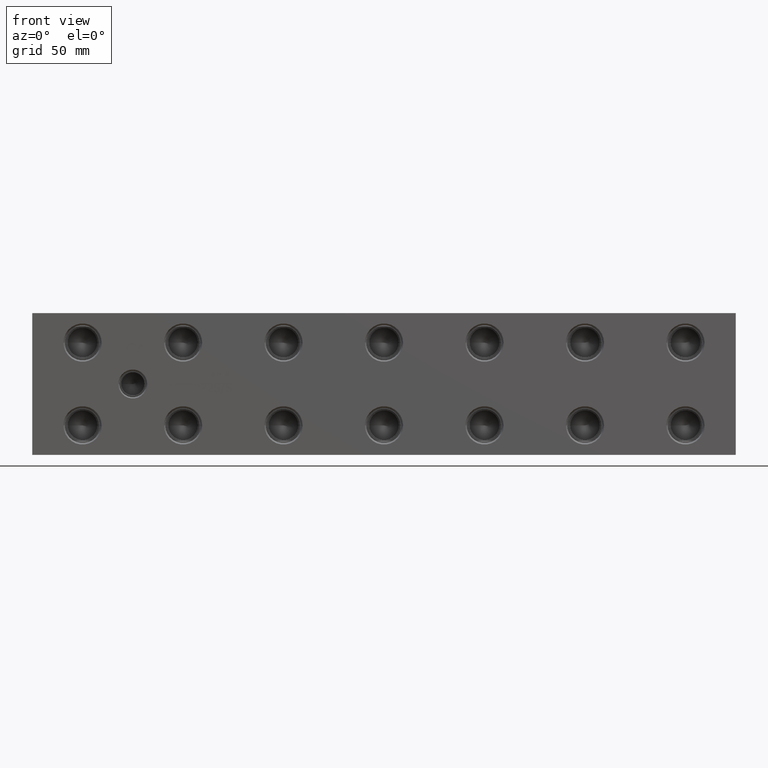
[diagram: clean part render]
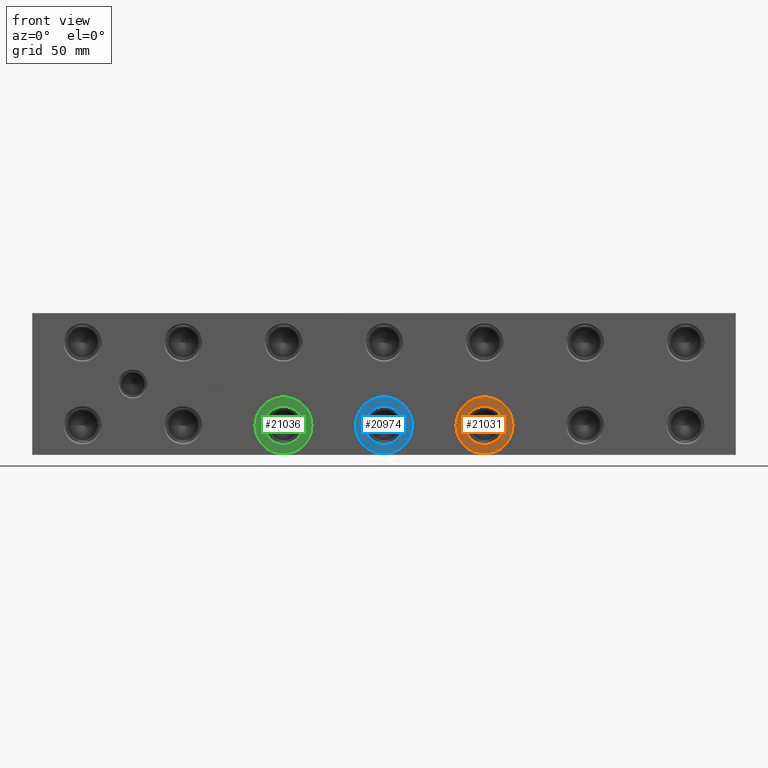
[diagram: same view with three faces highlighted in distinct colors, each labeled with its STEP entity id]
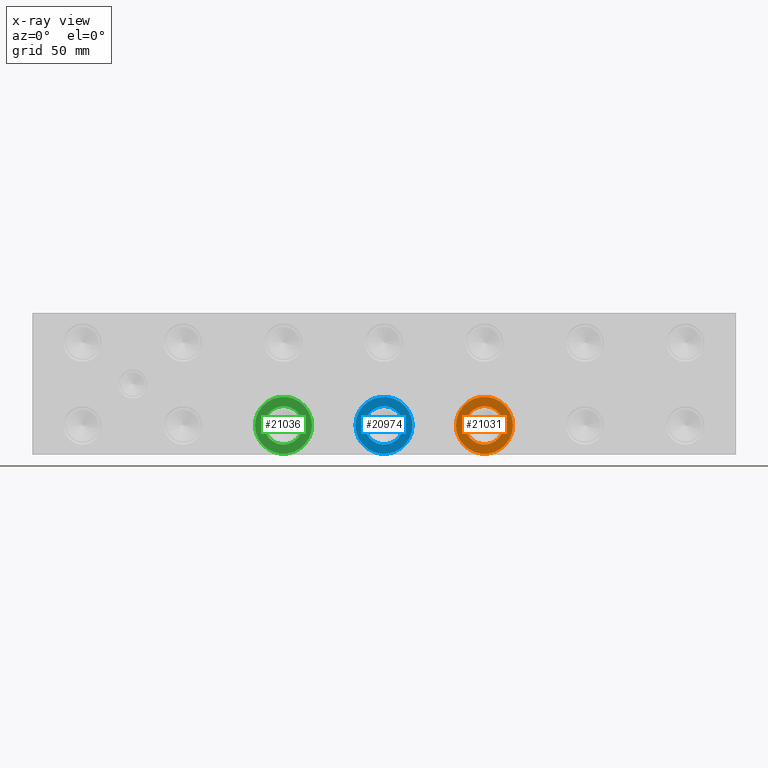
[diagram: x-ray of the same camera — body ghosted, the three highlighted faces saturated]
A machine part, front view with three faces highlighted in distinct colors.
The next image is the same camera in x-ray (body ghosted, the three faces saturated) — at least one of them is partly hidden behind the body in this view.
Their STEP definitions:

[orange] entity #21031 — the highlighted planar face has unit normal (0, 1, 0).
#536=CIRCLE('',#22102,15.3162);
#537=CIRCLE('',#22103,15.3162);
#538=CIRCLE('',#22105,10.2997);
#539=CIRCLE('',#22106,10.2997);
#1222=FACE_BOUND('',#3877,.T.);
#1815=PLANE('',#22104);
#2648=FACE_OUTER_BOUND('',#3876,.T.);
#3876=EDGE_LOOP('',(#17573,#17574));
#3877=EDGE_LOOP('',(#17575,#17576));
#9759=VERTEX_POINT('',#35461);
#9760=VERTEX_POINT('',#35463);
#9761=VERTEX_POINT('',#35467);
#9762=VERTEX_POINT('',#35468);
#12535=EDGE_CURVE('',#9759,#9760,#536,.T.);
#12536=EDGE_CURVE('',#9760,#9759,#537,.T.);
#12537=EDGE_CURVE('',#9761,#9762,#538,.T.);
#12538=EDGE_CURVE('',#9762,#9761,#539,.T.);
#17573=ORIENTED_EDGE('',*,*,#12536,.F.);
#17574=ORIENTED_EDGE('',*,*,#12535,.F.);
#17575=ORIENTED_EDGE('',*,*,#12537,.T.);
#17576=ORIENTED_EDGE('',*,*,#12538,.T.);
#21031=ADVANCED_FACE('',(#2648,#1222),#1815,.F.);
#22102=AXIS2_PLACEMENT_3D('',#35464,#25908,#25909);
#22103=AXIS2_PLACEMENT_3D('',#35465,#25910,#25911);
#22104=AXIS2_PLACEMENT_3D('',#35466,#25912,#25913);
#22105=AXIS2_PLACEMENT_3D('',#35469,#25914,#25915);
#22106=AXIS2_PLACEMENT_3D('',#35470,#25916,#25917);
#25908=DIRECTION('center_axis',(0.,1.,0.));
#25909=DIRECTION('ref_axis',(1.,0.,0.));
#25910=DIRECTION('center_axis',(0.,1.,0.));
#25911=DIRECTION('ref_axis',(1.,0.,0.));
#25912=DIRECTION('center_axis',(0.,1.,0.));
#25913=DIRECTION('ref_axis',(0.,0.,1.));
#25914=DIRECTION('center_axis',(0.,1.,0.));
#25915=DIRECTION('ref_axis',(1.,0.,0.));
#25916=DIRECTION('center_axis',(0.,1.,0.));
#25917=DIRECTION('ref_axis',(1.,0.,0.));
#35461=CARTESIAN_POINT('',(227.5586,0.7874,15.875));
#35463=CARTESIAN_POINT('',(258.191,0.7874,15.875));
#35464=CARTESIAN_POINT('Origin',(242.8748,0.7874,15.875));
#35465=CARTESIAN_POINT('Origin',(242.8748,0.7874,15.875));
#35466=CARTESIAN_POINT('Origin',(253.1745,0.7874,15.875));
#35467=CARTESIAN_POINT('',(253.1745,0.7874,15.875));
#35468=CARTESIAN_POINT('',(232.5751,0.7874,15.875));
#35469=CARTESIAN_POINT('Origin',(242.8748,0.7874,15.875));
#35470=CARTESIAN_POINT('Origin',(242.8748,0.7874,15.875));

[blue] entity #20974 — the highlighted planar face has unit normal (0, 1, 0).
#432=CIRCLE('',#21941,15.3162);
#433=CIRCLE('',#21942,15.3162);
#434=CIRCLE('',#21944,10.2997);
#435=CIRCLE('',#21945,10.2997);
#1210=FACE_BOUND('',#3808,.T.);
#1803=PLANE('',#21943);
#2591=FACE_OUTER_BOUND('',#3807,.T.);
#3807=EDGE_LOOP('',(#17266,#17267));
#3808=EDGE_LOOP('',(#17268,#17269));
#9654=VERTEX_POINT('',#35150);
#9655=VERTEX_POINT('',#35152);
#9656=VERTEX_POINT('',#35156);
#9657=VERTEX_POINT('',#35157);
#12386=EDGE_CURVE('',#9654,#9655,#432,.T.);
#12387=EDGE_CURVE('',#9655,#9654,#433,.T.);
#12388=EDGE_CURVE('',#9656,#9657,#434,.T.);
#12389=EDGE_CURVE('',#9657,#9656,#435,.T.);
#17266=ORIENTED_EDGE('',*,*,#12387,.F.);
#17267=ORIENTED_EDGE('',*,*,#12386,.F.);
#17268=ORIENTED_EDGE('',*,*,#12388,.T.);
#17269=ORIENTED_EDGE('',*,*,#12389,.T.);
#20974=ADVANCED_FACE('',(#2591,#1210),#1803,.F.);
#21941=AXIS2_PLACEMENT_3D('',#35153,#25541,#25542);
#21942=AXIS2_PLACEMENT_3D('',#35154,#25543,#25544);
#21943=AXIS2_PLACEMENT_3D('',#35155,#25545,#25546);
#21944=AXIS2_PLACEMENT_3D('',#35158,#25547,#25548);
#21945=AXIS2_PLACEMENT_3D('',#35159,#25549,#25550);
#25541=DIRECTION('center_axis',(0.,1.,0.));
#25542=DIRECTION('ref_axis',(1.,0.,0.));
#25543=DIRECTION('center_axis',(0.,1.,0.));
#25544=DIRECTION('ref_axis',(1.,0.,0.));
#25545=DIRECTION('center_axis',(0.,1.,0.));
#25546=DIRECTION('ref_axis',(0.,0.,1.));
#25547=DIRECTION('center_axis',(0.,1.,0.));
#25548=DIRECTION('ref_axis',(1.,0.,0.));
#25549=DIRECTION('center_axis',(0.,1.,0.));
#25550=DIRECTION('ref_axis',(1.,0.,0.));
#35150=CARTESIAN_POINT('',(173.5836,0.7874,15.875));
#35152=CARTESIAN_POINT('',(204.216,0.7874,15.875));
#35153=CARTESIAN_POINT('Origin',(188.8998,0.7874,15.875));
#35154=CARTESIAN_POINT('Origin',(188.8998,0.7874,15.875));
#35155=CARTESIAN_POINT('Origin',(199.1995,0.7874,15.875));
#35156=CARTESIAN_POINT('',(199.1995,0.7874,15.875));
#35157=CARTESIAN_POINT('',(178.6001,0.787399999999999,15.875));
#35158=CARTESIAN_POINT('Origin',(188.8998,0.7874,15.875));
#35159=CARTESIAN_POINT('Origin',(188.8998,0.7874,15.875));

[green] entity #21036 — the highlighted planar face has unit normal (0, 1, 0).
#545=CIRCLE('',#22116,15.3162);
#546=CIRCLE('',#22117,15.3162);
#547=CIRCLE('',#22119,10.2997);
#548=CIRCLE('',#22120,10.2997);
#1223=FACE_BOUND('',#3883,.T.);
#1816=PLANE('',#22118);
#2653=FACE_OUTER_BOUND('',#3882,.T.);
#3882=EDGE_LOOP('',(#17600,#17601));
#3883=EDGE_LOOP('',(#17602,#17603));
#9768=VERTEX_POINT('',#35488);
#9769=VERTEX_POINT('',#35490);
#9770=VERTEX_POINT('',#35494);
#9771=VERTEX_POINT('',#35495);
#12548=EDGE_CURVE('',#9768,#9769,#545,.T.);
#12549=EDGE_CURVE('',#9769,#9768,#546,.T.);
#12550=EDGE_CURVE('',#9770,#9771,#547,.T.);
#12551=EDGE_CURVE('',#9771,#9770,#548,.T.);
#17600=ORIENTED_EDGE('',*,*,#12549,.F.);
#17601=ORIENTED_EDGE('',*,*,#12548,.F.);
#17602=ORIENTED_EDGE('',*,*,#12550,.T.);
#17603=ORIENTED_EDGE('',*,*,#12551,.T.);
#21036=ADVANCED_FACE('',(#2653,#1223),#1816,.F.);
#22116=AXIS2_PLACEMENT_3D('',#35491,#25940,#25941);
#22117=AXIS2_PLACEMENT_3D('',#35492,#25942,#25943);
#22118=AXIS2_PLACEMENT_3D('',#35493,#25944,#25945);
#22119=AXIS2_PLACEMENT_3D('',#35496,#25946,#25947);
#22120=AXIS2_PLACEMENT_3D('',#35497,#25948,#25949);
#25940=DIRECTION('center_axis',(0.,1.,0.));
#25941=DIRECTION('ref_axis',(1.,0.,0.));
#25942=DIRECTION('center_axis',(0.,1.,0.));
#25943=DIRECTION('ref_axis',(1.,0.,0.));
#25944=DIRECTION('center_axis',(0.,1.,0.));
#25945=DIRECTION('ref_axis',(0.,0.,1.));
#25946=DIRECTION('center_axis',(0.,1.,0.));
#25947=DIRECTION('ref_axis',(1.,0.,0.));
#25948=DIRECTION('center_axis',(0.,1.,0.));
#25949=DIRECTION('ref_axis',(1.,0.,0.));
#35488=CARTESIAN_POINT('',(119.6086,0.7874,15.875));
#35490=CARTESIAN_POINT('',(150.241,0.7874,15.875));
#35491=CARTESIAN_POINT('Origin',(134.9248,0.7874,15.875));
#35492=CARTESIAN_POINT('Origin',(134.9248,0.7874,15.875));
#35493=CARTESIAN_POINT('Origin',(145.2245,0.7874,15.875));
#35494=CARTESIAN_POINT('',(145.2245,0.7874,15.875));
#35495=CARTESIAN_POINT('',(124.6251,0.787399999999997,15.875));
#35496=CARTESIAN_POINT('Origin',(134.9248,0.7874,15.875));
#35497=CARTESIAN_POINT('Origin',(134.9248,0.7874,15.875));